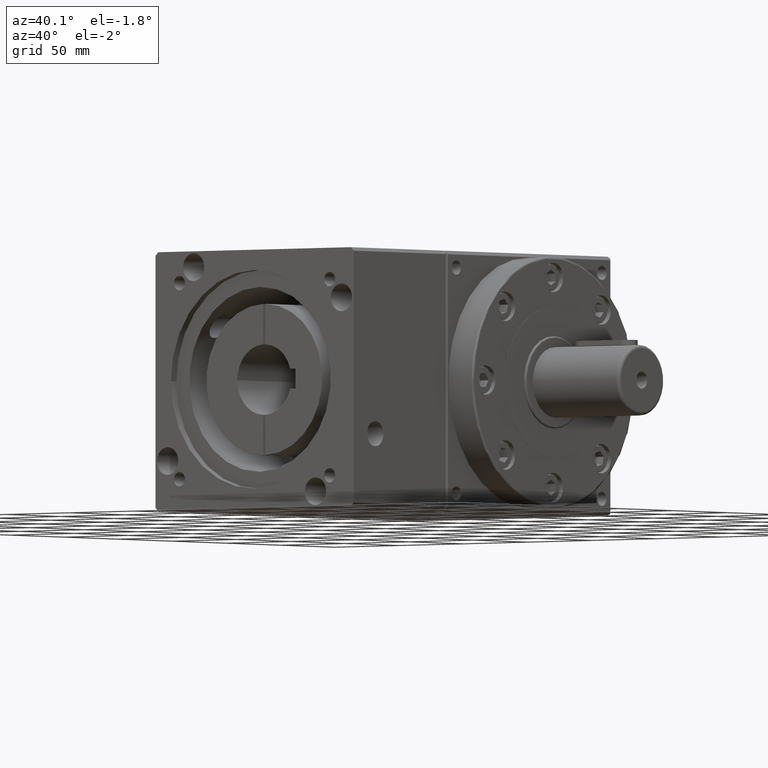
[diagram: clean part render]
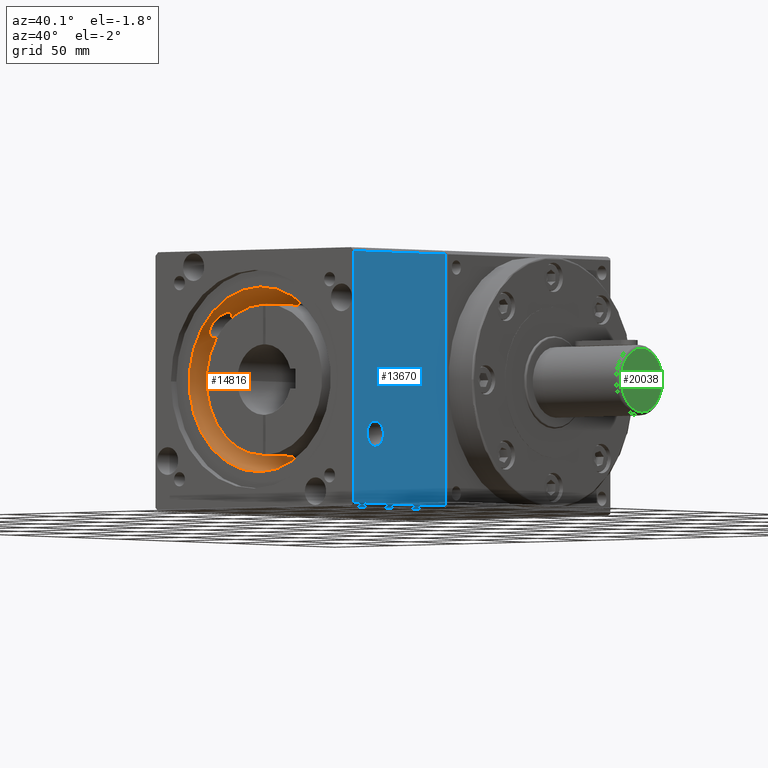
[diagram: same view with three faces highlighted in distinct colors, each labeled with its STEP entity id]
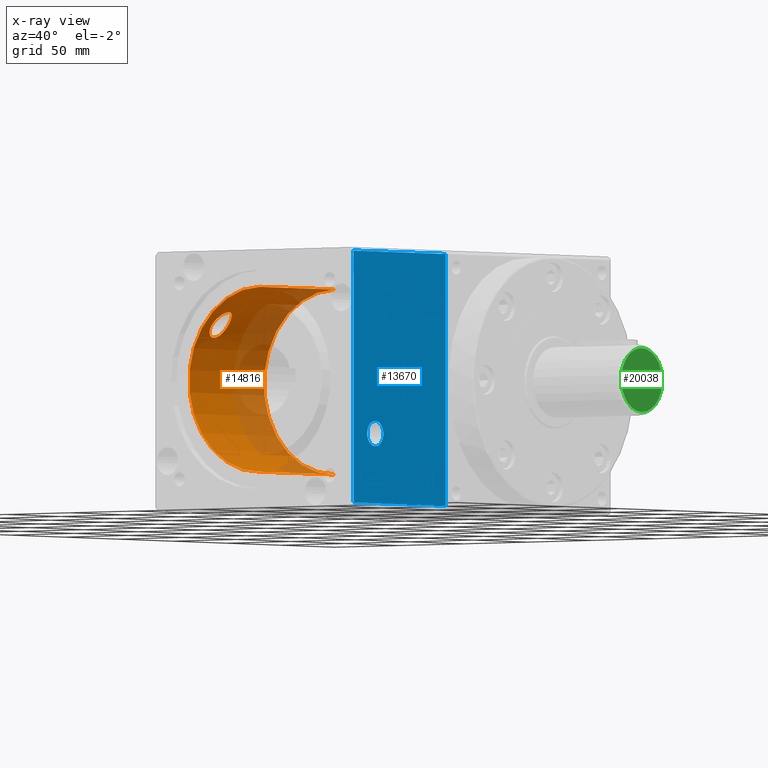
[diagram: x-ray of the same camera — body ghosted, the three highlighted faces saturated]
A machine part, auxiliary view with three faces highlighted in distinct colors.
The next image is the same camera in x-ray (body ghosted, the three faces saturated) — at least one of them is partly hidden behind the body in this view.
Their STEP definitions:

[orange] entity #14816 — the highlighted cylindrical surface (partial cylindrical patch) has radius 55 mm, axis along (-0, -1, -0).
#24 = CYLINDRICAL_SURFACE ( 'NONE', #11239, 55.00000000000000000 ) ;
#193 = VERTEX_POINT ( 'NONE', #4547 ) ;
#234 = ORIENTED_EDGE ( 'NONE', *, *, #15909, .F. ) ;
#299 = CARTESIAN_POINT ( 'NONE',  ( -37.54185489973694000, 136.6098363327526800, 40.19495302410894100 ) ) ;
#373 = CARTESIAN_POINT ( 'NONE',  ( -42.98465877850056700, 132.5316528916366400, 34.31660527960924200 ) ) ;
#440 = CARTESIAN_POINT ( 'NONE',  ( -47.18441130174939200, 134.6066066980092700, 28.26370431201125300 ) ) ;
#916 = ORIENTED_EDGE ( 'NONE', *, *, #10323, .F. ) ;
#1635 = ORIENTED_EDGE ( 'NONE', *, *, #14573, .F. ) ;
#1787 = CIRCLE ( 'NONE', #16188, 55.00000000000000000 ) ;
#1913 = CARTESIAN_POINT ( 'NONE',  ( -37.93668192560799200, 135.9582349626420500, 39.82263321235115700 ) ) ;
#1979 = CARTESIAN_POINT ( 'NONE',  ( -43.66973178504941400, 132.4969332546276300, 33.43700163886176600 ) ) ;
#2051 = CARTESIAN_POINT ( 'NONE',  ( -47.77591509573857600, 135.8198470675724000, 27.25070757910768600 ) ) ;
#2483 = EDGE_CURVE ( 'NONE', #7683, #16025, #5772, .T. ) ;
#2643 = DIRECTION ( 'NONE',  ( -0.0000000000000000000, -1.000000000000000000, -0.0000000000000000000 ) ) ;
#3448 = CARTESIAN_POINT ( 'NONE',  ( -36.66060555964672600, 140.0000000000000900, 40.99999999999999300 ) ) ;
#3520 = CARTESIAN_POINT ( 'NONE',  ( -38.51484665051473400, 135.1794619144068900, 39.26539550285556100 ) ) ;
#3591 = CARTESIAN_POINT ( 'NONE',  ( -44.17702943222336400, 132.5327456888220200, 32.76382918505928600 ) ) ;
#3661 = CARTESIAN_POINT ( 'NONE',  ( -48.13180674685772000, 137.0135598873447100, 26.61479651864429000 ) ) ;
#4207 = CARTESIAN_POINT ( 'NONE',  ( 0.0000000000000000000, -38.99598365699874600, -55.00000000000000000 ) ) ;
#4396 = AXIS2_PLACEMENT_3D ( 'NONE', #8667, #19388, #10211 ) ;
#4547 = CARTESIAN_POINT ( 'NONE',  ( 6.735557395310442600E-015, 194.0000000000000900, 55.00000000000000000 ) ) ;
#4772 = FACE_OUTER_BOUND ( 'NONE', #9691, .T. ) ;
#5110 = CARTESIAN_POINT ( 'NONE',  ( -39.48772128041792200, 134.2087713897217600, 38.28760059824804100 ) ) ;
#5128 = CARTESIAN_POINT ( 'NONE',  ( 0.0000000000000000000, 194.0000000000000900, 0.0000000000000000000 ) ) ;
#5178 = CARTESIAN_POINT ( 'NONE',  ( -44.99250156205685900, 132.7198250681878700, 31.63804017883225200 ) ) ;
#5191 = CARTESIAN_POINT ( 'NONE',  ( -36.66060555964672600, 140.0000000000000900, 40.99999999999999300 ) ) ;
#5204 = EDGE_LOOP ( 'NONE', ( #234, #15272 ) ) ;
#5228 = CARTESIAN_POINT ( 'NONE',  ( -36.66060555964671900, 140.2837648671030900, 40.99999999999998600 ) ) ;
#5234 = CARTESIAN_POINT ( 'NONE',  ( -36.67891548128208300, 140.5685671700387900, 40.98364791477942500 ) ) ;
#5245 = CARTESIAN_POINT ( 'NONE',  ( -48.29007894332004700, 137.7941339791224500, 26.32639417183665700 ) ) ;
#5254 = CARTESIAN_POINT ( 'NONE',  ( -36.74935297955642000, 141.1244729673822200, 40.92049966544406200 ) ) ;
#5370 = CARTESIAN_POINT ( 'NONE',  ( -36.80116039503349900, 141.3958560763480500, 40.87398539159954700 ) ) ;
#5438 = DIRECTION ( 'NONE',  ( -0.0000000000000000000, -1.000000000000000000, -0.0000000000000000000 ) ) ;
#5489 = CARTESIAN_POINT ( 'NONE',  ( -36.93463528828824100, 141.9266683388557900, 40.75341463405010200 ) ) ;
#5577 = CARTESIAN_POINT ( 'NONE',  ( -37.01690218790737700, 142.1875965162166400, 40.67880795260646200 ) ) ;
#5620 = CARTESIAN_POINT ( 'NONE',  ( -37.20630147021994100, 142.6910491001652600, 40.50564892630720200 ) ) ;
#5640 = CARTESIAN_POINT ( 'NONE',  ( -37.31243742018932600, 142.9316127371817200, 40.40800579564288600 ) ) ;
#5759 = CARTESIAN_POINT ( 'NONE',  ( 0.0000000000000000000, 125.0000000000001100, -55.00000000000000000 ) ) ;
#5771 = CARTESIAN_POINT ( 'NONE',  ( -37.54377202046035900, 143.3935981114556700, 40.19315987941169500 ) ) ;
#5772 = B_SPLINE_CURVE_WITH_KNOTS ( 'NONE', 3,
 ( #8511, #9357, #8969, #8469, #8399, #8372, #8306, #8285, #8242, #8235, #8170, #8032, #8012, #7938, #7834, #7739, #7614, #7552, #7361, #7310, #7291, #7163, #7025, #6979, #6978, #6954, #6688, #6680, #6551, #6461, #6301, #6245, #6182, #6110, #5918, #5869, #5771, #5640, #5620, #5577, #5489, #5370, #5254, #5234, #5228, #5191 ),
 .UNSPECIFIED., .F., .F.,
 ( 4, 2, 2, 2, 2, 2, 2, 2, 2, 2, 2, 2, 2, 2, 2, 2, 2, 2, 2, 2, 2, 2, 4 ),
 ( 0.02681273999232800000, 0.02848372573346954300, 0.03015471147461108700, 0.03099020434518186300, 0.03182569721575263800, 0.03266119008632341300, 0.03349668295689418900, 0.03516766869803570500, 0.03600316156860648000, 0.03683865443917724900, 0.03850964018031881300, 0.04018062592146037800, 0.04185161166260193500, 0.04352259740374350000, 0.04519358314488505800, 0.04686456888602662200, 0.04853555462716818700, 0.04937104749773893500, 0.05020654036830968900, 0.05104203323888044400, 0.05187752610945119100, 0.05271301898002194600, 0.05354851185059269400 ),
 .UNSPECIFIED. ) ;
#5869 = CARTESIAN_POINT ( 'NONE',  ( -37.66898894770258000, 143.6150027356806000, 40.07594093011744000 ) ) ;
#5918 = CARTESIAN_POINT ( 'NONE',  ( -37.93594773531492600, 144.0406357585691500, 39.82333033787925600 ) ) ;
#6110 = CARTESIAN_POINT ( 'NONE',  ( -38.07821273428173500, 144.2453711530701800, 39.68741978004265300 ) ) ;
#6182 = CARTESIAN_POINT ( 'NONE',  ( -38.51802568085537400, 144.8244469453534900, 39.26229734729107400 ) ) ;
#6245 = CARTESIAN_POINT ( 'NONE',  ( -38.83076417571816600, 145.1684756260041500, 38.95366719114340300 ) ) ;
#6301 = CARTESIAN_POINT ( 'NONE',  ( -39.48415038300862500, 145.7878960122415600, 38.29123010090640400 ) ) ;
#6461 = CARTESIAN_POINT ( 'NONE',  ( -39.82752284927745700, 146.0645777379785700, 37.93448155804223600 ) ) ;
#6551 = CARTESIAN_POINT ( 'NONE',  ( -40.51929306460057500, 146.5416477502016600, 37.19466839389988200 ) ) ;
#6636 = CARTESIAN_POINT ( 'NONE',  ( -36.73233322992837900, 138.8804378213197600, 40.93614685721803400 ) ) ;
#6672 = CARTESIAN_POINT ( 'NONE',  ( 6.735557395310442600E-015, 125.0000000000001100, 55.00000000000000000 ) ) ;
#6680 = CARTESIAN_POINT ( 'NONE',  ( -40.86868590216881400, 146.7435398958832600, 36.81076559351030400 ) ) ;
#6688 = CARTESIAN_POINT ( 'NONE',  ( -41.57177163306023700, 147.0789833533640900, 36.01485463304251100 ) ) ;
#6700 = CARTESIAN_POINT ( 'NONE',  ( -40.51711572138184900, 133.4598011565291000, 37.19701060612863600 ) ) ;
#6715 = DIRECTION ( 'NONE',  ( 0.0000000000000000000, 0.0000000000000000000, -1.000000000000000000 ) ) ;
#6767 = CARTESIAN_POINT ( 'NONE',  ( -45.60102338751328000, 133.0179130707265600, 30.75087656990574600 ) ) ;
#6835 = CARTESIAN_POINT ( 'NONE',  ( -48.39842566181401700, 138.6002628207396600, 26.12656348158671800 ) ) ;
#6954 = CARTESIAN_POINT ( 'NONE',  ( -41.92590920946774700, 147.2126117153125600, 35.60233311108712700 ) ) ;
#6978 = CARTESIAN_POINT ( 'NONE',  ( -42.63577400165911500, 147.4081957462638900, 34.74908288390920300 ) ) ;
#6979 = CARTESIAN_POINT ( 'NONE',  ( -42.98505050867523600, 147.4684325919014600, 34.31612606792484100 ) ) ;
#7025 = CARTESIAN_POINT ( 'NONE',  ( -43.67212190844045200, 147.5126308969525200, 33.43735700615989300 ) ) ;
#7108 = CARTESIAN_POINT ( 'NONE',  ( -36.66060555964672600, 140.0000000000000900, 40.99999999999999300 ) ) ;
#7163 = CARTESIAN_POINT ( 'NONE',  ( -44.00991689590986100, 147.4966408675317400, 32.99154729747650800 ) ) ;
#7291 = CARTESIAN_POINT ( 'NONE',  ( -44.67398527000403200, 147.3797326591563300, 32.08660185127092000 ) ) ;
#7310 = CARTESIAN_POINT ( 'NONE',  ( -44.99307263091423400, 147.2800247081474900, 31.63724362309106700 ) ) ;
#7361 = CARTESIAN_POINT ( 'NONE',  ( -45.45258395122337400, 147.0642280940237200, 30.96991369646314100 ) ) ;
#7552 = CARTESIAN_POINT ( 'NONE',  ( -45.60257336703865900, 146.9811962633168000, 30.74858123730643200 ) ) ;
#7604 = LINE ( 'NONE', #4207, #15769 ) ;
#7614 = CARTESIAN_POINT ( 'NONE',  ( -45.89617258805301200, 146.7913458283113100, 30.30860088441939500 ) ) ;
#7652 = VERTEX_POINT ( 'NONE', #10680 ) ;
#7683 = VERTEX_POINT ( 'NONE', #9204 ) ;
#7739 = CARTESIAN_POINT ( 'NONE',  ( -46.04015801625362100, 146.6840972419661900, 30.08934649196967800 ) ) ;
#7834 = CARTESIAN_POINT ( 'NONE',  ( -46.45537015677282300, 146.3298113827937400, 29.44755123094060100 ) ) ;
#7938 = CARTESIAN_POINT ( 'NONE',  ( -46.71219523165559900, 146.0494559205096200, 29.03752771861945400 ) ) ;
#8012 = CARTESIAN_POINT ( 'NONE',  ( -47.06785253242234300, 145.5551492596854100, 28.45468428622284000 ) ) ;
#8032 = CARTESIAN_POINT ( 'NONE',  ( -47.18182975299870200, 145.3771591203424400, 28.26514922795938000 ) ) ;
#8170 = CARTESIAN_POINT ( 'NONE',  ( -47.39537316899966900, 145.0020149407057500, 27.90559660518000800 ) ) ;
#8184 = CARTESIAN_POINT ( 'NONE',  ( -37.01550630450150000, 137.8167137865558500, 40.68007544448401100 ) ) ;
#8235 = CARTESIAN_POINT ( 'NONE',  ( -47.49546853144548200, 144.8042793312704100, 27.73473083539871100 ) ) ;
#8242 = CARTESIAN_POINT ( 'NONE',  ( -47.68258168481840200, 144.3878385423493300, 27.41178997081668100 ) ) ;
#8249 = CARTESIAN_POINT ( 'NONE',  ( -41.57364378095181900, 132.9201201358542100, 36.01273639297328100 ) ) ;
#8285 = CARTESIAN_POINT ( 'NONE',  ( -47.76960216986566400, 144.1691397398809600, 27.25970841405200700 ) ) ;
#8306 = CARTESIAN_POINT ( 'NONE',  ( -47.93041341896564900, 143.7094179701367700, 26.97595343585483700 ) ) ;
#8322 = CARTESIAN_POINT ( 'NONE',  ( -46.03836135497550000, 133.3144636939248900, 30.09210375809887200 ) ) ;
#8372 = CARTESIAN_POINT ( 'NONE',  ( -48.00384912862019600, 143.4689811744629000, 26.84489556986445200 ) ) ;
#8389 = CARTESIAN_POINT ( 'NONE',  ( -48.45785708310696500, 139.4340139029763700, 26.01609853789111800 ) ) ;
#8399 = CARTESIAN_POINT ( 'NONE',  ( -48.19916873694476300, 142.7308659055884400, 26.49362055945851000 ) ) ;
#8469 = CARTESIAN_POINT ( 'NONE',  ( -48.29864050433260300, 142.2093826635046700, 26.31085964528390900 ) ) ;
#8511 = CARTESIAN_POINT ( 'NONE',  ( -48.46648326421053800, 140.0000000000000900, 25.99999999999999600 ) ) ;
#8667 = CARTESIAN_POINT ( 'NONE',  ( 0.0000000000000000000, 125.0000000000001100, 0.0000000000000000000 ) ) ;
#8760 = B_SPLINE_CURVE_WITH_KNOTS ( 'NONE', 3,
 ( #3448, #12721, #6636, #17402, #8184, #18923, #9719, #299, #11257, #1913, #12790, #3520, #14315, #5110, #15898, #6700, #17477, #8249, #18980, #9783, #373, #11318, #1979, #12856, #3591, #14388, #5178, #15971, #6767, #17536, #8322, #19046, #9853, #440, #11395, #2051, #12919, #3661, #14461, #5245, #16044, #6835, #17606, #8389, #19116, #9924 ),
 .UNSPECIFIED., .F., .F.,
 ( 4, 2, 2, 2, 2, 2, 2, 2, 2, 2, 2, 2, 2, 2, 2, 2, 2, 2, 2, 2, 2, 2, 4 ),
 ( 0.0000000000000000000, 0.001675796249520644400, 0.002513694374280925200, 0.003351592499041206000, 0.004189490623801487600, 0.005027388748561767900, 0.006703184998082261900, 0.008378981247602756600, 0.01005477749712325000, 0.01173057374664374400, 0.01340636999616423700, 0.01424426812092447600, 0.01508216624568471500, 0.01675796249520516300, 0.01759586061996540000, 0.01843375874472563300, 0.02010955499424611100, 0.02178535124376658500, 0.02346114749328705900, 0.02429904561804729600, 0.02513694374280752900, 0.02597484186756776600, 0.02681273999232800000 ),
 .UNSPECIFIED. ) ;
#8969 = CARTESIAN_POINT ( 'NONE',  ( -48.43334001182271500, 141.1146005987165200, 26.06207177374350800 ) ) ;
#9204 = CARTESIAN_POINT ( 'NONE',  ( -48.46648326421053800, 140.0000000000000900, 25.99999999999999600 ) ) ;
#9357 = CARTESIAN_POINT ( 'NONE',  ( -48.46648326421054500, 140.5605808502035400, 26.00000000000000000 ) ) ;
#9691 = EDGE_LOOP ( 'NONE', ( #1635, #16420, #14590, #916 ) ) ;
#9719 = CARTESIAN_POINT ( 'NONE',  ( -37.30958423288648600, 137.0744875059691900, 40.41064268596051100 ) ) ;
#9783 = CARTESIAN_POINT ( 'NONE',  ( -42.63693968941075200, 132.5917501015174500, 34.74758511499467100 ) ) ;
#9853 = CARTESIAN_POINT ( 'NONE',  ( -46.71194605663039600, 133.9504409734825300, 29.03790190306301300 ) ) ;
#9924 = CARTESIAN_POINT ( 'NONE',  ( -48.46648326421053800, 140.0000000000000900, 25.99999999999999600 ) ) ;
#10211 = DIRECTION ( 'NONE',  ( 1.000000000000000000, 0.0000000000000000000, 0.0000000000000000000 ) ) ;
#10323 = EDGE_CURVE ( 'NONE', #7652, #14250, #7604, .T. ) ;
#10680 = CARTESIAN_POINT ( 'NONE',  ( 0.0000000000000000000, 194.0000000000000900, -55.00000000000000000 ) ) ;
#10693 = VERTEX_POINT ( 'NONE', #6672 ) ;
#11239 = AXIS2_PLACEMENT_3D ( 'NONE', #13088, #5438, #11562 ) ;
#11257 = CARTESIAN_POINT ( 'NONE',  ( -37.66900824304202900, 136.3849253188387000, 40.07592506076228700 ) ) ;
#11318 = CARTESIAN_POINT ( 'NONE',  ( -43.49932566487457600, 132.4984547997506500, 33.65837546222845600 ) ) ;
#11395 = CARTESIAN_POINT ( 'NONE',  ( -47.40192188300721900, 134.9875604971209400, 27.89618125469042900 ) ) ;
#11562 = DIRECTION ( 'NONE',  ( 0.0000000000000000000, 0.0000000000000000000, -1.000000000000000000 ) ) ;
#11836 = DIRECTION ( 'NONE',  ( -0.0000000000000000000, -1.000000000000000000, -0.0000000000000000000 ) ) ;
#12490 = FACE_BOUND ( 'NONE', #5204, .T. ) ;
#12721 = CARTESIAN_POINT ( 'NONE',  ( -36.66060555964673300, 139.4308364358489900, 41.00000000000000700 ) ) ;
#12790 = CARTESIAN_POINT ( 'NONE',  ( -38.07713404967354600, 135.7561887474379600, 39.68844966347610600 ) ) ;
#12856 = CARTESIAN_POINT ( 'NONE',  ( -44.00823599680380500, 132.5140070900661200, 32.99020638348633100 ) ) ;
#12871 = EDGE_CURVE ( 'NONE', #10693, #14250, #15704, .T. ) ;
#12919 = CARTESIAN_POINT ( 'NONE',  ( -47.93501355539567000, 136.2729781671568200, 26.96863610245841200 ) ) ;
#13088 = CARTESIAN_POINT ( 'NONE',  ( 0.0000000000000000000, -38.99598365699874600, 0.0000000000000000000 ) ) ;
#13479 = CARTESIAN_POINT ( 'NONE',  ( 6.735557395310442600E-015, -38.99598365699874600, 55.00000000000000000 ) ) ;
#13484 = VECTOR ( 'NONE', #2643, 1000.000000000000000 ) ;
#14250 = VERTEX_POINT ( 'NONE', #5759 ) ;
#14315 = CARTESIAN_POINT ( 'NONE',  ( -38.82824828910522500, 134.8338568894226600, 38.95622705409924400 ) ) ;
#14388 = CARTESIAN_POINT ( 'NONE',  ( -44.67407644291221700, 132.6203503153603800, 32.08645544877034400 ) ) ;
#14461 = CARTESIAN_POINT ( 'NONE',  ( -48.19045802213261700, 137.2718615639653900, 26.50831020755698800 ) ) ;
#14573 = EDGE_CURVE ( 'NONE', #193, #7652, #1787, .T. ) ;
#14590 = ORIENTED_EDGE ( 'NONE', *, *, #12871, .T. ) ;
#14816 = ADVANCED_FACE ( 'NONE', ( #12490, #4772 ), #24, .F. ) ;
#15272 = ORIENTED_EDGE ( 'NONE', *, *, #2483, .F. ) ;
#15704 = CIRCLE ( 'NONE', #4396, 55.00000000000000000 ) ;
#15769 = VECTOR ( 'NONE', #11836, 1000.000000000000000 ) ;
#15898 = CARTESIAN_POINT ( 'NONE',  ( -39.82830932189043700, 133.9349326569280500, 37.93362678379315200 ) ) ;
#15909 = EDGE_CURVE ( 'NONE', #16025, #7683, #8760, .T. ) ;
#15920 = DIRECTION ( 'NONE',  ( -0.0000000000000000000, -1.000000000000000000, -0.0000000000000000000 ) ) ;
#15971 = CARTESIAN_POINT ( 'NONE',  ( -45.45125898377383300, 132.9350910007995600, 30.97185419993761400 ) ) ;
#16025 = VERTEX_POINT ( 'NONE', #7108 ) ;
#16044 = CARTESIAN_POINT ( 'NONE',  ( -48.33158864160403600, 138.0598142686154100, 26.24999933863411200 ) ) ;
#16188 = AXIS2_PLACEMENT_3D ( 'NONE', #5128, #15920, #6715 ) ;
#16420 = ORIENTED_EDGE ( 'NONE', *, *, #17954, .T. ) ;
#17402 = CARTESIAN_POINT ( 'NONE',  ( -36.93277427351544200, 138.0794718167015600, 40.75510140423048700 ) ) ;
#17477 = CARTESIAN_POINT ( 'NONE',  ( -40.86671630205652400, 133.2574031099830200, 36.81299415182747500 ) ) ;
#17536 = CARTESIAN_POINT ( 'NONE',  ( -45.89422353394680000, 133.2072835772051500, 30.31154878956591900 ) ) ;
#17606 = CARTESIAN_POINT ( 'NONE',  ( -48.42375523939675500, 138.8750295724795800, 26.07951734091483300 ) ) ;
#17954 = EDGE_CURVE ( 'NONE', #193, #10693, #19752, .T. ) ;
#18923 = CARTESIAN_POINT ( 'NONE',  ( -37.20365093063202300, 137.3154093645422100, 40.50808070717721400 ) ) ;
#18980 = CARTESIAN_POINT ( 'NONE',  ( -41.93259338335187900, 132.7852825793135900, 35.59439435569488100 ) ) ;
#19046 = CARTESIAN_POINT ( 'NONE',  ( -46.45520386088849600, 133.6698600614176700, 29.44784769047225100 ) ) ;
#19116 = CARTESIAN_POINT ( 'NONE',  ( -48.46648326421053800, 139.7189026623046300, 26.00000000000000400 ) ) ;
#19388 = DIRECTION ( 'NONE',  ( 1.128512696921279200E-016, -1.000000000000000000, 0.0000000000000000000 ) ) ;
#19752 = LINE ( 'NONE', #13479, #13484 ) ;

[blue] entity #13670 — the highlighted planar face has unit normal (-1, 0, 0).
#23 = VECTOR ( 'NONE', #18906, 1000.000000000000000 ) ;
#290 = EDGE_CURVE ( 'NONE', #11569, #5563, #10539, .T. ) ;
#752 = EDGE_CURVE ( 'NONE', #14702, #11569, #2675, .T. ) ;
#1229 = EDGE_CURVE ( 'NONE', #13059, #12586, #17228, .T. ) ;
#1385 = ORIENTED_EDGE ( 'NONE', *, *, #8374, .F. ) ;
#1530 = AXIS2_PLACEMENT_3D ( 'NONE', #14671, #14642, #14627 ) ;
#2675 = LINE ( 'NONE', #14765, #14571 ) ;
#3076 = FACE_OUTER_BOUND ( 'NONE', #19726, .T. ) ;
#3487 = DIRECTION ( 'NONE',  ( 3.707088791698049700E-016, 0.0000000000000000000, 1.000000000000000000 ) ) ;
#3513 = CARTESIAN_POINT ( 'NONE',  ( 76.99999999999995700, 205.0000000000000900, -74.87162346309850100 ) ) ;
#4425 = CARTESIAN_POINT ( 'NONE',  ( 76.99999999999995700, 119.9990000000001100, -74.87162346309850100 ) ) ;
#4758 = EDGE_CURVE ( 'NONE', #12586, #13059, #8423, .T. ) ;
#5003 = VECTOR ( 'NONE', #11634, 1000.000000000000000 ) ;
#5328 = DIRECTION ( 'NONE',  ( 1.000000000000000000, 0.0000000000000000000, -3.707088791698049700E-016 ) ) ;
#5384 = ORIENTED_EDGE ( 'NONE', *, *, #4758, .F. ) ;
#5563 = VERTEX_POINT ( 'NONE', #6822 ) ;
#5985 = DIRECTION ( 'NONE',  ( -1.000000000000000000, 0.0000000000000000000, 3.707088791698049700E-016 ) ) ;
#6003 = ORIENTED_EDGE ( 'NONE', *, *, #752, .T. ) ;
#6022 = CARTESIAN_POINT ( 'NONE',  ( 76.99999999999997200, 140.0000000000000900, -25.99999999999998900 ) ) ;
#6443 = VECTOR ( 'NONE', #3487, 1000.000000000000000 ) ;
#6822 = CARTESIAN_POINT ( 'NONE',  ( 77.00000000000001400, 205.0000000000000900, 74.87162346309847300 ) ) ;
#7647 = CARTESIAN_POINT ( 'NONE',  ( 76.99999999999997200, 140.0000000000000900, -40.99999999999998600 ) ) ;
#7737 = ORIENTED_EDGE ( 'NONE', *, *, #1229, .F. ) ;
#8374 = EDGE_CURVE ( 'NONE', #14702, #16769, #8907, .T. ) ;
#8423 = CIRCLE ( 'NONE', #9055, 7.500000000000000000 ) ;
#8528 = EDGE_CURVE ( 'NONE', #16769, #5563, #9138, .T. ) ;
#8907 = LINE ( 'NONE', #9701, #23 ) ;
#8951 = CARTESIAN_POINT ( 'NONE',  ( 77.00000000000001400, 120.0000000000001100, 74.87162346309851600 ) ) ;
#9055 = AXIS2_PLACEMENT_3D ( 'NONE', #14546, #5328, #16120 ) ;
#9138 = LINE ( 'NONE', #10110, #5003 ) ;
#9701 = CARTESIAN_POINT ( 'NONE',  ( 76.99999999999995700, 120.0000000000000900, -74.87162346309850100 ) ) ;
#10110 = CARTESIAN_POINT ( 'NONE',  ( 77.00000000000001400, 119.9990000000001100, 74.87162346309847300 ) ) ;
#10528 = CARTESIAN_POINT ( 'NONE',  ( 76.99999999999995700, 205.0000000000000900, -74.87162346309850100 ) ) ;
#10539 = LINE ( 'NONE', #3513, #6443 ) ;
#11569 = VERTEX_POINT ( 'NONE', #10528 ) ;
#11576 = EDGE_LOOP ( 'NONE', ( #7737, #5384 ) ) ;
#11634 = DIRECTION ( 'NONE',  ( -0.0000000000000000000, 1.000000000000000000, -0.0000000000000000000 ) ) ;
#12537 = AXIS2_PLACEMENT_3D ( 'NONE', #4425, #5985, #16770 ) ;
#12586 = VERTEX_POINT ( 'NONE', #6022 ) ;
#13059 = VERTEX_POINT ( 'NONE', #7647 ) ;
#13607 = PLANE ( 'NONE',  #12537 ) ;
#13670 = ADVANCED_FACE ( 'NONE', ( #18582, #3076 ), #13607, .F. ) ;
#14392 = DIRECTION ( 'NONE',  ( -0.0000000000000000000, 1.000000000000000000, -0.0000000000000000000 ) ) ;
#14546 = CARTESIAN_POINT ( 'NONE',  ( 76.99999999999997200, 140.0000000000000900, -33.49999999999998600 ) ) ;
#14571 = VECTOR ( 'NONE', #14392, 1000.000000000000000 ) ;
#14627 = DIRECTION ( 'NONE',  ( 0.0000000000000000000, 0.0000000000000000000, -1.000000000000000000 ) ) ;
#14642 = DIRECTION ( 'NONE',  ( 1.000000000000000000, 0.0000000000000000000, -3.707088791698049700E-016 ) ) ;
#14671 = CARTESIAN_POINT ( 'NONE',  ( 76.99999999999997200, 140.0000000000000900, -33.49999999999998600 ) ) ;
#14702 = VERTEX_POINT ( 'NONE', #17521 ) ;
#14765 = CARTESIAN_POINT ( 'NONE',  ( 76.99999999999995700, 119.9990000000001100, -74.87162346309850100 ) ) ;
#16120 = DIRECTION ( 'NONE',  ( 0.0000000000000000000, 0.0000000000000000000, -1.000000000000000000 ) ) ;
#16611 = ORIENTED_EDGE ( 'NONE', *, *, #290, .T. ) ;
#16769 = VERTEX_POINT ( 'NONE', #8951 ) ;
#16770 = DIRECTION ( 'NONE',  ( 3.707088791698049700E-016, 0.0000000000000000000, 1.000000000000000000 ) ) ;
#16772 = ORIENTED_EDGE ( 'NONE', *, *, #8528, .F. ) ;
#17228 = CIRCLE ( 'NONE', #1530, 7.500000000000000000 ) ;
#17521 = CARTESIAN_POINT ( 'NONE',  ( 76.99999999999995700, 120.0000000000001100, -74.87162346309857200 ) ) ;
#18582 = FACE_BOUND ( 'NONE', #11576, .T. ) ;
#18906 = DIRECTION ( 'NONE',  ( 3.707088791698049700E-016, 0.0000000000000000000, 1.000000000000000000 ) ) ;
#19726 = EDGE_LOOP ( 'NONE', ( #6003, #16611, #16772, #1385 ) ) ;

[green] entity #20038 — the highlighted planar face has unit normal (-1, 0, -0).
#592 = DIRECTION ( 'NONE',  ( 0.0000000000000000000, 0.0000000000000000000, -1.000000000000000000 ) ) ;
#763 = CARTESIAN_POINT ( 'NONE',  ( 164.4999999999999700, 282.0000000000000000, -5.099999999999993400 ) ) ;
#2245 = FACE_OUTER_BOUND ( 'NONE', #12135, .T. ) ;
#2669 = AXIS2_PLACEMENT_3D ( 'NONE', #4565, #15357, #6140 ) ;
#2992 = CARTESIAN_POINT ( 'NONE',  ( 164.4999999999999700, 282.0000000000000000, 19.00000000000001800 ) ) ;
#3132 = ORIENTED_EDGE ( 'NONE', *, *, #17490, .F. ) ;
#3458 = CARTESIAN_POINT ( 'NONE',  ( 164.4999999999999700, 282.0000000000000000, 0.0000000000000000000 ) ) ;
#3551 = PLANE ( 'NONE',  #14576 ) ;
#3858 = DIRECTION ( 'NONE',  ( 1.000000000000000000, 0.0000000000000000000, 0.0000000000000000000 ) ) ;
#3872 = VERTEX_POINT ( 'NONE', #11682 ) ;
#4052 = AXIS2_PLACEMENT_3D ( 'NONE', #13102, #3858, #14661 ) ;
#4565 = CARTESIAN_POINT ( 'NONE',  ( 164.4999999999999700, 282.0000000000000000, 0.0000000000000000000 ) ) ;
#5052 = DIRECTION ( 'NONE',  ( 0.0000000000000000000, 0.0000000000000000000, 1.000000000000000000 ) ) ;
#5145 = DIRECTION ( 'NONE',  ( -0.0000000000000000000, 0.0000000000000000000, 1.000000000000000000 ) ) ;
#5343 = ORIENTED_EDGE ( 'NONE', *, *, #19503, .T. ) ;
#5769 = CIRCLE ( 'NONE', #15956, 19.00000000000001800 ) ;
#5932 = VERTEX_POINT ( 'NONE', #2992 ) ;
#6140 = DIRECTION ( 'NONE',  ( 0.0000000000000000000, 0.0000000000000000000, -1.000000000000000000 ) ) ;
#6575 = CIRCLE ( 'NONE', #2669, 5.099999999999993400 ) ;
#7464 = CIRCLE ( 'NONE', #4052, 19.00000000000001800 ) ;
#8554 = VERTEX_POINT ( 'NONE', #763 ) ;
#8602 = AXIS2_PLACEMENT_3D ( 'NONE', #19204, #10012, #592 ) ;
#10012 = DIRECTION ( 'NONE',  ( 1.000000000000000000, -0.0000000000000000000, -0.0000000000000000000 ) ) ;
#11285 = CARTESIAN_POINT ( 'NONE',  ( 164.4999999999999700, 303.0000000000000600, 0.0000000000000000000 ) ) ;
#11682 = CARTESIAN_POINT ( 'NONE',  ( 164.4999999999999700, 282.0000000000000000, -19.00000000000001800 ) ) ;
#12135 = EDGE_LOOP ( 'NONE', ( #5343, #12701 ) ) ;
#12455 = VERTEX_POINT ( 'NONE', #14961 ) ;
#12701 = ORIENTED_EDGE ( 'NONE', *, *, #18882, .T. ) ;
#13102 = CARTESIAN_POINT ( 'NONE',  ( 164.4999999999999700, 282.0000000000000000, 0.0000000000000000000 ) ) ;
#14116 = FACE_BOUND ( 'NONE', #17500, .T. ) ;
#14253 = DIRECTION ( 'NONE',  ( 1.000000000000000000, 0.0000000000000000000, 0.0000000000000000000 ) ) ;
#14352 = DIRECTION ( 'NONE',  ( -1.000000000000000000, 0.0000000000000000000, -0.0000000000000000000 ) ) ;
#14576 = AXIS2_PLACEMENT_3D ( 'NONE', #11285, #14352, #5145 ) ;
#14656 = EDGE_CURVE ( 'NONE', #12455, #8554, #15399, .T. ) ;
#14661 = DIRECTION ( 'NONE',  ( 0.0000000000000000000, 0.0000000000000000000, 1.000000000000000000 ) ) ;
#14961 = CARTESIAN_POINT ( 'NONE',  ( 164.4999999999999700, 282.0000000000000000, 5.099999999999993400 ) ) ;
#15048 = ORIENTED_EDGE ( 'NONE', *, *, #14656, .F. ) ;
#15357 = DIRECTION ( 'NONE',  ( 1.000000000000000000, -0.0000000000000000000, -0.0000000000000000000 ) ) ;
#15399 = CIRCLE ( 'NONE', #8602, 5.099999999999993400 ) ;
#15956 = AXIS2_PLACEMENT_3D ( 'NONE', #3458, #14253, #5052 ) ;
#17490 = EDGE_CURVE ( 'NONE', #8554, #12455, #6575, .T. ) ;
#17500 = EDGE_LOOP ( 'NONE', ( #3132, #15048 ) ) ;
#18882 = EDGE_CURVE ( 'NONE', #3872, #5932, #5769, .T. ) ;
#19204 = CARTESIAN_POINT ( 'NONE',  ( 164.4999999999999700, 282.0000000000000000, 0.0000000000000000000 ) ) ;
#19503 = EDGE_CURVE ( 'NONE', #5932, #3872, #7464, .T. ) ;
#20038 = ADVANCED_FACE ( 'NONE', ( #2245, #14116 ), #3551, .F. ) ;